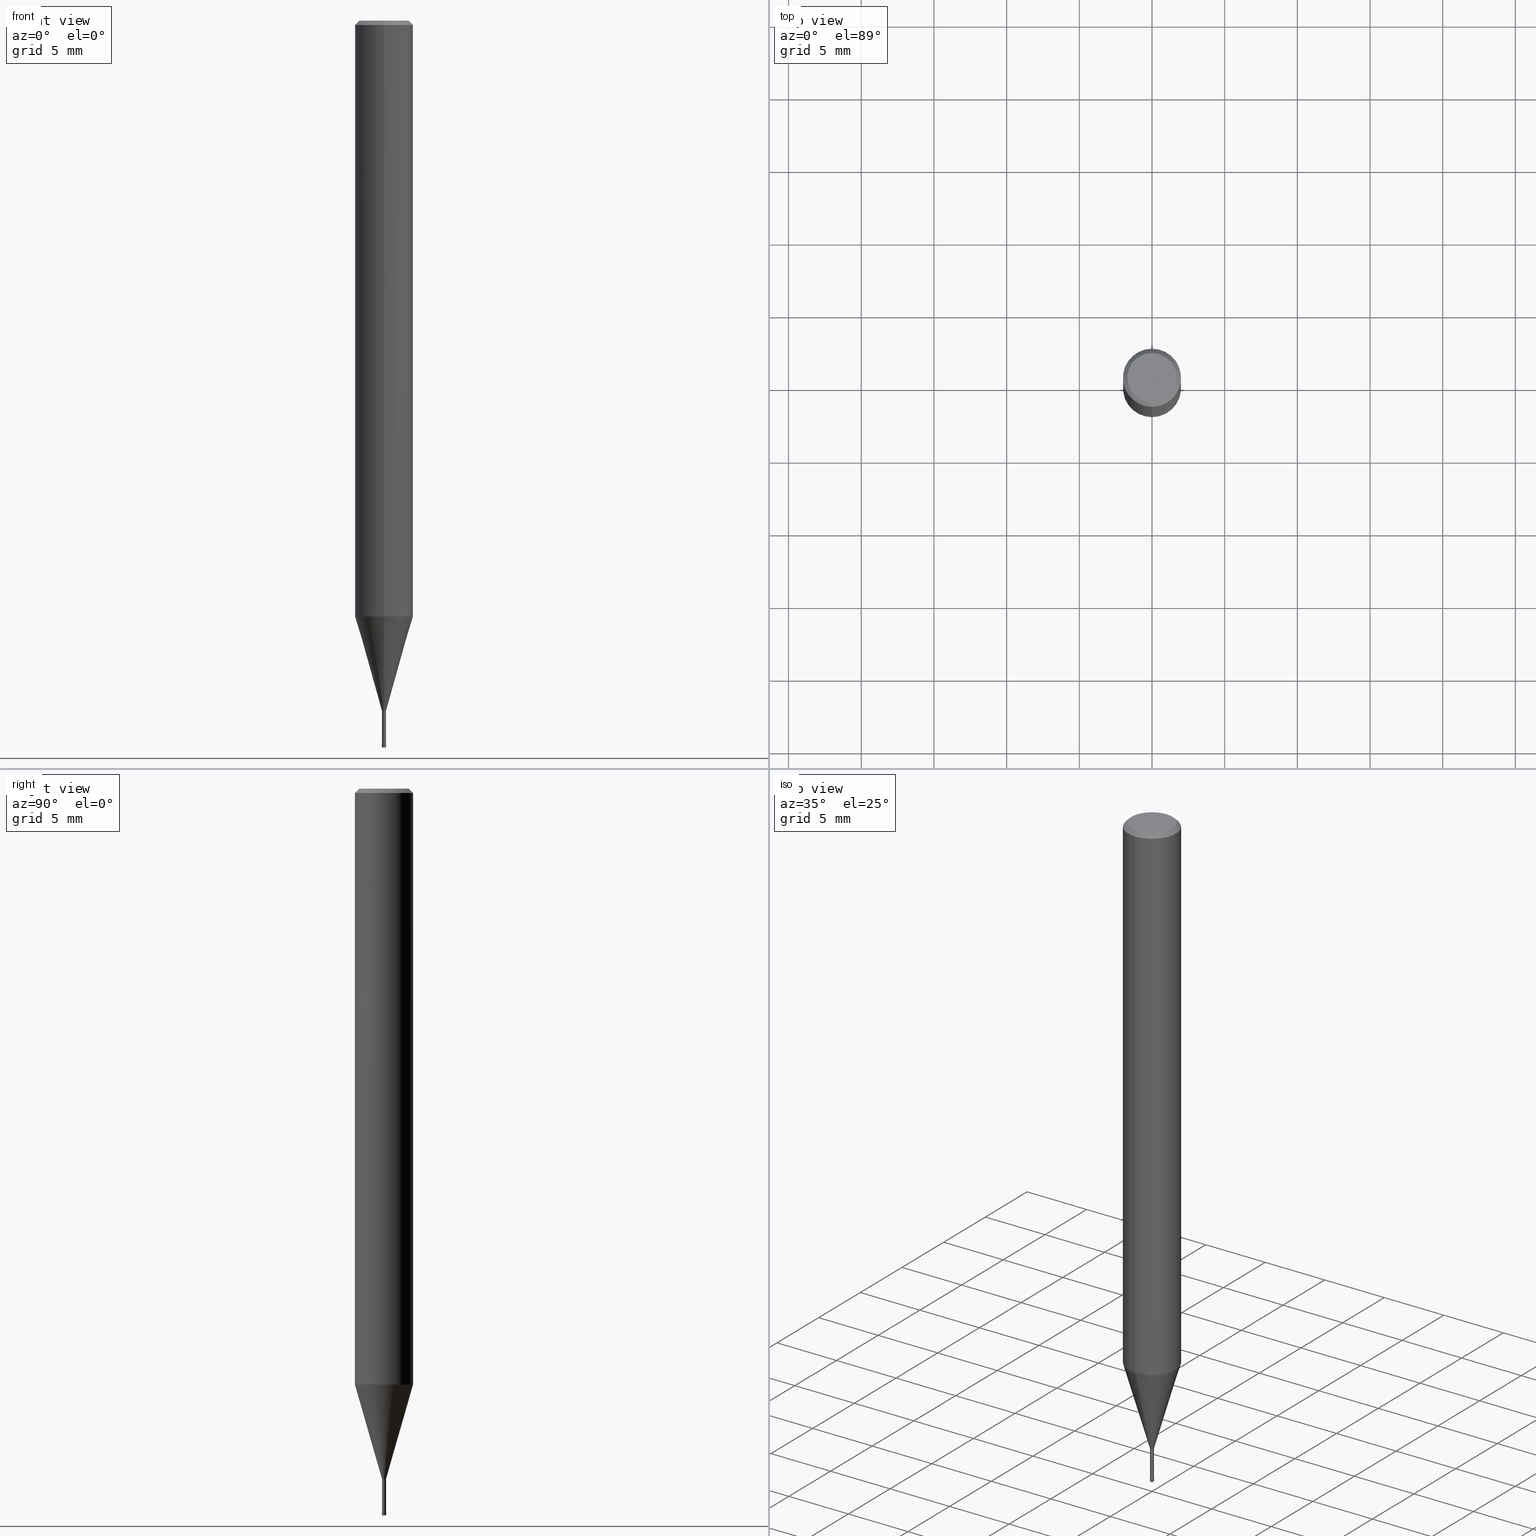
[diagram: canonical four-view strip — front | top / right | iso, engineering-drawing reading convention]
A machine part, canonical four-view strip (front | top / right | iso — engineering-drawing reading convention). The complete STEP part file that produces these views, byte-faithful:
ISO-10303-21;
HEADER;
FILE_DESCRIPTION(('no description'),'unknown implementation level');
FILE_NAME('HLRS2003-005-025E-Huellk.stp','  ',('CIMSOURCE GmbH'),('CADClick - KiM GmbH - www.kimweb.de'),'unknown preprocess','ACIS','unknown authorization');
FILE_SCHEMA(('automotive_design'));
ENDSEC;
DATA;
#1=MECHANICAL_DESIGN_GEOMETRIC_PRESENTATION_REPRESENTATION(' ',(#14,#15,#16,#17,#18,#19,#20,#21,#22,#23,#24,#25,#26,#27,#28,#29,#30,#31,#32,#33,#34,#35,#36,#37,#38,#39,#40,#41,#42,#43,#44,#45,#46,#47,#48,#49,#50,#51,#52,#53,#54,#55,#56,#57,#58,#59,#60,#61,#62,#63,#64,#65,#66,#67,#68,#69,#70,#71,#72,#73,#74,#75,#76,#77,#78,#79,#80),#10);
#2=PRODUCT_DEFINITION_CONTEXT('',#81,'design');
#3=APPLICATION_PROTOCOL_DEFINITION('INTERNATIONAL STANDARD','automotive_design',1994,#81);
#4=PRODUCT_CATEGORY_RELATIONSHIP('NONE','NONE',#82,#83);
#5=SHAPE_DEFINITION_REPRESENTATION(#84,#85);
#6=PRODUCT_DEFINITION_CONTEXT('',#86,'design');
#7=APPLICATION_PROTOCOL_DEFINITION('INTERNATIONAL STANDARD','automotive_design',1994,#86);
#8=PRODUCT_CATEGORY_RELATIONSHIP('NONE','NONE',#87,#88);
#9=SHAPE_DEFINITION_REPRESENTATION(#89,#90);
#10= (GEOMETRIC_REPRESENTATION_CONTEXT(3)GLOBAL_UNCERTAINTY_ASSIGNED_CONTEXT((#93))GLOBAL_UNIT_ASSIGNED_CONTEXT((#95,#96,#97))REPRESENTATION_CONTEXT('NONE','WORKSPACE'));
#14=STYLED_ITEM('',(#99),#100);
#15=STYLED_ITEM('',(#101),#102);
#16=STYLED_ITEM('',(#103),#104);
#17=STYLED_ITEM('',(#105),#106);
#18=STYLED_ITEM('',(#107),#108);
#19=STYLED_ITEM('',(#109),#110);
#20=STYLED_ITEM('',(#111),#112);
#21=STYLED_ITEM('',(#113),#114);
#22=STYLED_ITEM('',(#115),#116);
#23=STYLED_ITEM('',(#117),#118);
#24=STYLED_ITEM('',(#119),#120);
#25=STYLED_ITEM('',(#121),#122);
#26=STYLED_ITEM('',(#123),#124);
#27=STYLED_ITEM('',(#125),#126);
#28=STYLED_ITEM('',(#127),#128);
#29=STYLED_ITEM('',(#129),#130);
#30=STYLED_ITEM('',(#131),#132);
#31=STYLED_ITEM('',(#133),#134);
#32=STYLED_ITEM('',(#135),#136);
#33=STYLED_ITEM('',(#137),#138);
#34=STYLED_ITEM('',(#139),#140);
#35=STYLED_ITEM('',(#141),#142);
#36=STYLED_ITEM('',(#143),#144);
#37=STYLED_ITEM('',(#145),#146);
#38=STYLED_ITEM('',(#147),#148);
#39=STYLED_ITEM('',(#149),#150);
#40=STYLED_ITEM('',(#151),#152);
#41=STYLED_ITEM('',(#153),#154);
#42=STYLED_ITEM('',(#155),#156);
#43=STYLED_ITEM('',(#157),#158);
#44=STYLED_ITEM('',(#159),#160);
#45=STYLED_ITEM('',(#161),#162);
#46=STYLED_ITEM('',(#163),#164);
#47=STYLED_ITEM('',(#165),#166);
#48=STYLED_ITEM('',(#167),#168);
#49=STYLED_ITEM('',(#169),#170);
#50=STYLED_ITEM('',(#171),#172);
#51=STYLED_ITEM('',(#173),#174);
#52=STYLED_ITEM('',(#175),#176);
#53=STYLED_ITEM('',(#177),#178);
#54=STYLED_ITEM('',(#179),#180);
#55=STYLED_ITEM('',(#181),#182);
#56=STYLED_ITEM('',(#183),#184);
#57=STYLED_ITEM('',(#185),#186);
#58=STYLED_ITEM('',(#187),#188);
#59=STYLED_ITEM('',(#189),#190);
#60=STYLED_ITEM('',(#191),#192);
#61=STYLED_ITEM('',(#193),#194);
#62=STYLED_ITEM('',(#195),#196);
#63=STYLED_ITEM('',(#197),#198);
#64=STYLED_ITEM('',(#199),#200);
#65=STYLED_ITEM('',(#201),#202);
#66=STYLED_ITEM('',(#203),#204);
#67=STYLED_ITEM('',(#205),#206);
#68=STYLED_ITEM('',(#207),#208);
#69=STYLED_ITEM('',(#209),#210);
#70=STYLED_ITEM('',(#211),#212);
#71=STYLED_ITEM('',(#213),#214);
#72=STYLED_ITEM('',(#215),#216);
#73=STYLED_ITEM('',(#217),#218);
#74=STYLED_ITEM('',(#219),#220);
#75=STYLED_ITEM('',(#221),#222);
#76=STYLED_ITEM('',(#223),#224);
#77=STYLED_ITEM('',(#225),#226);
#78=STYLED_ITEM('',(#227),#228);
#79=STYLED_ITEM('',(#229),#230);
#80=STYLED_ITEM('',(#231),#232);
#81=APPLICATION_CONTEXT(' ');
#82=PRODUCT_CATEGORY('part','NONE');
#83=PRODUCT_RELATED_PRODUCT_CATEGORY('detail',' ',(#233));
#84=PRODUCT_DEFINITION_SHAPE('NONE','NONE',#234);
#85=ADVANCED_BREP_SHAPE_REPRESENTATION('1',(#114,#235),#10);
#86=APPLICATION_CONTEXT(' ');
#87=PRODUCT_CATEGORY('part','NONE');
#88=PRODUCT_RELATED_PRODUCT_CATEGORY('detail',' ',(#236));
#89=PRODUCT_DEFINITION_SHAPE('NONE','NONE',#237);
#90=ADVANCED_BREP_SHAPE_REPRESENTATION('2',(#158,#238),#10);
#93=UNCERTAINTY_MEASURE_WITH_UNIT(LENGTH_MEASURE(1.0E-006),#95,'','');
#95= (CONVERSION_BASED_UNIT('MILLIMETRE',#241)LENGTH_UNIT()NAMED_UNIT(#244));
#96= (NAMED_UNIT(#246)PLANE_ANGLE_UNIT()SI_UNIT($,.RADIAN.));
#97= (NAMED_UNIT(#246)SOLID_ANGLE_UNIT()SI_UNIT($,.STERADIAN.));
#99=PRESENTATION_STYLE_ASSIGNMENT((#252));
#100=ADVANCED_FACE('',(#253),#254,.T.);
#101=PRESENTATION_STYLE_ASSIGNMENT((#255));
#102=VERTEX_POINT('',#256);
#103=PRESENTATION_STYLE_ASSIGNMENT((#257));
#104=ADVANCED_FACE('',(#258),#259,.T.);
#105=PRESENTATION_STYLE_ASSIGNMENT((#260));
#106=EDGE_CURVE('',#140,#198,#261,.T.);
#107=PRESENTATION_STYLE_ASSIGNMENT((#262));
#108=ADVANCED_FACE('',(#263),#264,.T.);
#109=PRESENTATION_STYLE_ASSIGNMENT((#265));
#110=EDGE_CURVE('',#140,#210,#266,.T.);
#111=PRESENTATION_STYLE_ASSIGNMENT((#267));
#112=VERTEX_POINT('',#268);
#113=PRESENTATION_STYLE_ASSIGNMENT((#269));
#114=MANIFOLD_SOLID_BREP('1',#270);
#115=PRESENTATION_STYLE_ASSIGNMENT((#271));
#116=EDGE_CURVE('',#138,#182,#272,.T.);
#117=PRESENTATION_STYLE_ASSIGNMENT((#273));
#118=VERTEX_POINT('',#274);
#119=PRESENTATION_STYLE_ASSIGNMENT((#275));
#120=ADVANCED_FACE('',(#276),#277,.T.);
#121=PRESENTATION_STYLE_ASSIGNMENT((#278));
#122=EDGE_CURVE('',#198,#140,#279,.T.);
#123=PRESENTATION_STYLE_ASSIGNMENT((#280));
#124=EDGE_CURVE('',#210,#190,#281,.T.);
#125=PRESENTATION_STYLE_ASSIGNMENT((#282));
#126=EDGE_CURVE('',#190,#178,#283,.T.);
#127=PRESENTATION_STYLE_ASSIGNMENT((#284));
#128=ADVANCED_FACE('',(#285),#286,.T.);
#129=PRESENTATION_STYLE_ASSIGNMENT((#287));
#130=EDGE_CURVE('',#182,#138,#288,.T.);
#131=PRESENTATION_STYLE_ASSIGNMENT((#289));
#132=VERTEX_POINT('',#290);
#133=PRESENTATION_STYLE_ASSIGNMENT((#291));
#134=EDGE_CURVE('',#202,#132,#292,.T.);
#135=PRESENTATION_STYLE_ASSIGNMENT((#293));
#136=EDGE_CURVE('',#102,#210,#294,.T.);
#137=PRESENTATION_STYLE_ASSIGNMENT((#295));
#138=VERTEX_POINT('',#296);
#139=PRESENTATION_STYLE_ASSIGNMENT((#297));
#140=VERTEX_POINT('',#298);
#141=PRESENTATION_STYLE_ASSIGNMENT((#299));
#142=VERTEX_POINT('',#300);
#143=PRESENTATION_STYLE_ASSIGNMENT((#301));
#144=EDGE_CURVE('',#142,#162,#302,.T.);
#145=PRESENTATION_STYLE_ASSIGNMENT((#303));
#146=ADVANCED_FACE('',(#304),#305,.T.);
#147=PRESENTATION_STYLE_ASSIGNMENT((#306));
#148=EDGE_CURVE('',#210,#102,#307,.T.);
#149=PRESENTATION_STYLE_ASSIGNMENT((#308));
#150=ADVANCED_FACE('',(#309),#310,.T.);
#151=PRESENTATION_STYLE_ASSIGNMENT((#311));
#152=ADVANCED_FACE('',(#312),#313,.T.);
#153=PRESENTATION_STYLE_ASSIGNMENT((#314));
#154=EDGE_CURVE('',#112,#132,#315,.T.);
#155=PRESENTATION_STYLE_ASSIGNMENT((#316));
#156=EDGE_CURVE('',#112,#224,#317,.T.);
#157=PRESENTATION_STYLE_ASSIGNMENT((#318));
#158=MANIFOLD_SOLID_BREP('2',#319);
#159=PRESENTATION_STYLE_ASSIGNMENT((#320));
#160=VERTEX_POINT('',#321);
#161=PRESENTATION_STYLE_ASSIGNMENT((#322));
#162=VERTEX_POINT('',#323);
#163=PRESENTATION_STYLE_ASSIGNMENT((#324));
#164=ADVANCED_FACE('',(#325),#326,.T.);
#165=PRESENTATION_STYLE_ASSIGNMENT((#327));
#166=EDGE_CURVE('',#118,#142,#328,.T.);
#167=PRESENTATION_STYLE_ASSIGNMENT((#329));
#168=ADVANCED_FACE('',(#330,#331),#332,.T.);
#169=PRESENTATION_STYLE_ASSIGNMENT((#333));
#170=ADVANCED_FACE('',(#334),#335,.T.);
#171=PRESENTATION_STYLE_ASSIGNMENT((#336));
#172=EDGE_CURVE('',#142,#118,#337,.T.);
#173=PRESENTATION_STYLE_ASSIGNMENT((#338));
#174=ADVANCED_FACE('',(#339),#340,.T.);
#175=PRESENTATION_STYLE_ASSIGNMENT((#341));
#176=EDGE_CURVE('',#112,#220,#342,.T.);
#177=PRESENTATION_STYLE_ASSIGNMENT((#343));
#178=VERTEX_POINT('',#344);
#179=PRESENTATION_STYLE_ASSIGNMENT((#345));
#180=EDGE_CURVE('',#138,#160,#346,.T.);
#181=PRESENTATION_STYLE_ASSIGNMENT((#347));
#182=VERTEX_POINT('',#348);
#183=PRESENTATION_STYLE_ASSIGNMENT((#349));
#184=ADVANCED_FACE('',(#350),#351,.T.);
#185=PRESENTATION_STYLE_ASSIGNMENT((#352));
#186=EDGE_CURVE('',#220,#194,#353,.T.);
#187=PRESENTATION_STYLE_ASSIGNMENT((#354));
#188=EDGE_CURVE('',#132,#112,#355,.T.);
#189=PRESENTATION_STYLE_ASSIGNMENT((#356));
#190=VERTEX_POINT('',#357);
#191=PRESENTATION_STYLE_ASSIGNMENT((#358));
#192=EDGE_CURVE('',#160,#162,#359,.T.);
#193=PRESENTATION_STYLE_ASSIGNMENT((#360));
#194=VERTEX_POINT('',#361);
#195=PRESENTATION_STYLE_ASSIGNMENT((#362));
#196=ADVANCED_FACE('',(#363),#364,.T.);
#197=PRESENTATION_STYLE_ASSIGNMENT((#365));
#198=VERTEX_POINT('',#366);
#199=PRESENTATION_STYLE_ASSIGNMENT((#367));
#200=EDGE_CURVE('',#178,#190,#368,.T.);
#201=PRESENTATION_STYLE_ASSIGNMENT((#369));
#202=VERTEX_POINT('',#370);
#203=PRESENTATION_STYLE_ASSIGNMENT((#371));
#204=EDGE_CURVE('',#202,#224,#372,.T.);
#205=PRESENTATION_STYLE_ASSIGNMENT((#373));
#206=EDGE_CURVE('',#102,#198,#374,.T.);
#207=PRESENTATION_STYLE_ASSIGNMENT((#375));
#208=EDGE_CURVE('',#224,#202,#376,.T.);
#209=PRESENTATION_STYLE_ASSIGNMENT((#377));
#210=VERTEX_POINT('',#378);
#211=PRESENTATION_STYLE_ASSIGNMENT((#379));
#212=EDGE_CURVE('',#160,#118,#380,.T.);
#213=PRESENTATION_STYLE_ASSIGNMENT((#381));
#214=ADVANCED_FACE('',(#382),#383,.T.);
#215=PRESENTATION_STYLE_ASSIGNMENT((#384));
#216=ADVANCED_FACE('',(#385),#386,.T.);
#217=PRESENTATION_STYLE_ASSIGNMENT((#387));
#218=EDGE_CURVE('',#162,#182,#388,.T.);
#219=PRESENTATION_STYLE_ASSIGNMENT((#389));
#220=VERTEX_POINT('',#390);
#221=PRESENTATION_STYLE_ASSIGNMENT((#391));
#222=EDGE_CURVE('',#194,#220,#392,.T.);
#223=PRESENTATION_STYLE_ASSIGNMENT((#393));
#224=VERTEX_POINT('',#394);
#225=PRESENTATION_STYLE_ASSIGNMENT((#395));
#226=EDGE_CURVE('',#162,#160,#396,.T.);
#227=PRESENTATION_STYLE_ASSIGNMENT((#397));
#228=ADVANCED_FACE('',(#398),#399,.T.);
#229=PRESENTATION_STYLE_ASSIGNMENT((#400));
#230=EDGE_CURVE('',#194,#132,#401,.T.);
#231=PRESENTATION_STYLE_ASSIGNMENT((#402));
#232=EDGE_CURVE('',#178,#102,#403,.T.);
#233=PRODUCT('1','1','PART-1-DESC',(#404));
#234=PRODUCT_DEFINITION('NONE','NONE',#405,#2);
#235=AXIS2_PLACEMENT_3D('',#406,#407,#408);
#236=PRODUCT('2','2','PART-2-DESC',(#409));
#237=PRODUCT_DEFINITION('NONE','NONE',#410,#6);
#238=AXIS2_PLACEMENT_3D('',#411,#412,#413);
#241=LENGTH_MEASURE_WITH_UNIT(LENGTH_MEASURE(1.0),#414);
#244=DIMENSIONAL_EXPONENTS(1.0,0.0,0.0,0.0,0.0,0.0,0.0);
#246=DIMENSIONAL_EXPONENTS(0.0,0.0,0.0,0.0,0.0,0.0,0.0);
#252=SURFACE_STYLE_USAGE(.BOTH.,#415);
#253=FACE_OUTER_BOUND('',#416,.T.);
#254=CYLINDRICAL_SURFACE('',#417,0.13495);
#255=POINT_STYLE(' ',#418,POSITIVE_LENGTH_MEASURE(1.0E-006),#419);
#256=CARTESIAN_POINT('',(2.44921270764475E-016,-2.0,-0.299999999999997));
#257=SURFACE_STYLE_USAGE(.BOTH.,#420);
#258=FACE_OUTER_BOUND('',#421,.T.);
#259=PLANE('',#422);
#260=CURVE_STYLE('',#423,POSITIVE_LENGTH_MEASURE(1.0E-006),#424);
#261=CIRCLE('',#425,1.7);
#262=SURFACE_STYLE_USAGE(.BOTH.,#426);
#263=FACE_OUTER_BOUND('',#427,.T.);
#264=CYLINDRICAL_SURFACE('',#428,0.13495);
#265=CURVE_STYLE('',#429,POSITIVE_LENGTH_MEASURE(1.0E-006),#430);
#266=LINE('',#431,#432);
#267=POINT_STYLE(' ',#433,POSITIVE_LENGTH_MEASURE(1.0E-006),#434);
#268=CARTESIAN_POINT('',(1.83690953073357E-017,-0.15,-49.95));
#269=SURFACE_STYLE_USAGE(.BOTH.,#435);
#270=CLOSED_SHELL('',(#100,#174,#216,#128,#168,#120,#164,#196,#146,#108,#184));
#271=CURVE_STYLE('',#436,POSITIVE_LENGTH_MEASURE(1.0E-006),#437);
#272=CIRCLE('',#438,1.99995);
#273=POINT_STYLE(' ',#439,POSITIVE_LENGTH_MEASURE(1.0E-006),#440);
#274=CARTESIAN_POINT('',(0.0,0.13495,-49.7));
#275=SURFACE_STYLE_USAGE(.BOTH.,#441);
#276=FACE_OUTER_BOUND('',#442,.T.);
#277=PLANE('',#443);
#278=CURVE_STYLE('',#444,POSITIVE_LENGTH_MEASURE(1.0E-006),#445);
#279=CIRCLE('',#446,1.7);
#280=CURVE_STYLE('',#447,POSITIVE_LENGTH_MEASURE(1.0E-006),#448);
#281=LINE('',#449,#450);
#282=CURVE_STYLE('',#451,POSITIVE_LENGTH_MEASURE(1.0E-006),#452);
#283=CIRCLE('',#453,2.0);
#284=SURFACE_STYLE_USAGE(.BOTH.,#454);
#285=FACE_OUTER_BOUND('',#455,.T.);
#286=CONICAL_SURFACE('',#456,1.85,0.785398163397453);
#287=CURVE_STYLE('',#457,POSITIVE_LENGTH_MEASURE(1.0E-006),#458);
#288=CIRCLE('',#459,1.99995);
#289=POINT_STYLE(' ',#460,POSITIVE_LENGTH_MEASURE(1.0E-006),#461);
#290=CARTESIAN_POINT('',(0.0,0.15,-49.95));
#291=CURVE_STYLE('',#462,POSITIVE_LENGTH_MEASURE(1.0E-006),#463);
#292=LINE('',#464,#465);
#293=CURVE_STYLE('',#466,POSITIVE_LENGTH_MEASURE(1.0E-006),#467);
#294=CIRCLE('',#468,2.0);
#295=POINT_STYLE(' ',#469,POSITIVE_LENGTH_MEASURE(1.0E-006),#470);
#296=CARTESIAN_POINT('',(0.0,1.99995,-40.996));
#297=POINT_STYLE(' ',#471,POSITIVE_LENGTH_MEASURE(1.0E-006),#472);
#298=CARTESIAN_POINT('',(0.0,1.7,0.0));
#299=POINT_STYLE(' ',#473,POSITIVE_LENGTH_MEASURE(1.0E-006),#474);
#300=CARTESIAN_POINT('',(1.6526062744833E-017,-0.13495,-49.7));
#301=CURVE_STYLE('',#475,POSITIVE_LENGTH_MEASURE(1.0E-006),#476);
#302=LINE('',#477,#478);
#303=SURFACE_STYLE_USAGE(.BOTH.,#479);
#304=FACE_OUTER_BOUND('',#480,.T.);
#305=CONICAL_SURFACE('',#481,1.06745,0.279253818445948);
#306=CURVE_STYLE('',#482,POSITIVE_LENGTH_MEASURE(1.0E-006),#483);
#307=CIRCLE('',#484,2.0);
#308=SURFACE_STYLE_USAGE(.BOTH.,#485);
#309=FACE_OUTER_BOUND('',#486,.T.);
#310=TOROIDAL_SURFACE('',#487,0.1,0.0499999999999998);
#311=SURFACE_STYLE_USAGE(.BOTH.,#488);
#312=FACE_OUTER_BOUND('',#489,.T.);
#313=CONICAL_SURFACE('',#490,0.14995,0.000399999978666625);
#314=CURVE_STYLE('',#491,POSITIVE_LENGTH_MEASURE(1.0E-006),#492);
#315=CIRCLE('',#493,0.15);
#316=CURVE_STYLE('',#494,POSITIVE_LENGTH_MEASURE(1.0E-006),#495);
#317=LINE('',#496,#497);
#318=SURFACE_STYLE_USAGE(.BOTH.,#498);
#319=CLOSED_SHELL('',(#228,#170,#214,#152,#150,#104));
#320=POINT_STYLE(' ',#499,POSITIVE_LENGTH_MEASURE(1.0E-006),#500);
#321=CARTESIAN_POINT('',(0.0,0.13495,-47.5));
#322=POINT_STYLE(' ',#501,POSITIVE_LENGTH_MEASURE(1.0E-006),#502);
#323=CARTESIAN_POINT('',(1.6526062744833E-017,-0.13495,-47.5));
#324=SURFACE_STYLE_USAGE(.BOTH.,#503);
#325=FACE_OUTER_BOUND('',#504,.T.);
#326=CONICAL_SURFACE('',#505,1.85,0.785398163397453);
#327=CURVE_STYLE('',#506,POSITIVE_LENGTH_MEASURE(1.0E-006),#507);
#328=CIRCLE('',#508,0.13495);
#329=SURFACE_STYLE_USAGE(.BOTH.,#509);
#330=FACE_OUTER_BOUND('',#510,.T.);
#331=FACE_BOUND('',#511,.T.);
#332=PLANE('',#512);
#333=SURFACE_STYLE_USAGE(.BOTH.,#513);
#334=FACE_OUTER_BOUND('',#514,.T.);
#335=CONICAL_SURFACE('',#515,0.14995,0.000399999978666625);
#336=CURVE_STYLE('',#516,POSITIVE_LENGTH_MEASURE(1.0E-006),#517);
#337=CIRCLE('',#518,0.13495);
#338=SURFACE_STYLE_USAGE(.BOTH.,#519);
#339=FACE_OUTER_BOUND('',#520,.T.);
#340=CONICAL_SURFACE('',#521,1.06745,0.279253818445948);
#341=CURVE_STYLE('',#522,POSITIVE_LENGTH_MEASURE(1.0E-006),#523);
#342=CIRCLE('',#524,0.0499999999999998);
#343=POINT_STYLE(' ',#525,POSITIVE_LENGTH_MEASURE(1.0E-006),#526);
#344=CARTESIAN_POINT('',(2.44921270764475E-016,-2.0,-40.996));
#345=CURVE_STYLE('',#527,POSITIVE_LENGTH_MEASURE(1.0E-006),#528);
#346=LINE('',#529,#530);
#347=POINT_STYLE(' ',#531,POSITIVE_LENGTH_MEASURE(1.0E-006),#532);
#348=CARTESIAN_POINT('',(2.44915147732706E-016,-1.99995,-40.996));
#349=SURFACE_STYLE_USAGE(.BOTH.,#533);
#350=FACE_OUTER_BOUND('',#534,.T.);
#351=PLANE('',#535);
#352=CURVE_STYLE('',#536,POSITIVE_LENGTH_MEASURE(1.0E-006),#537);
#353=CIRCLE('',#538,0.1);
#354=CURVE_STYLE('',#539,POSITIVE_LENGTH_MEASURE(1.0E-006),#540);
#355=CIRCLE('',#541,0.15);
#356=POINT_STYLE(' ',#542,POSITIVE_LENGTH_MEASURE(1.0E-006),#543);
#357=CARTESIAN_POINT('',(0.0,2.0,-40.996));
#358=CURVE_STYLE('',#544,POSITIVE_LENGTH_MEASURE(1.0E-006),#545);
#359=CIRCLE('',#546,0.13495);
#360=POINT_STYLE(' ',#547,POSITIVE_LENGTH_MEASURE(1.0E-006),#548);
#361=CARTESIAN_POINT('',(0.0,0.1,-50.0));
#362=SURFACE_STYLE_USAGE(.BOTH.,#549);
#363=FACE_OUTER_BOUND('',#550,.T.);
#364=CYLINDRICAL_SURFACE('',#551,2.0);
#365=POINT_STYLE(' ',#552,POSITIVE_LENGTH_MEASURE(1.0E-006),#553);
#366=CARTESIAN_POINT('',(2.08183080149804E-016,-1.7,0.0));
#367=CURVE_STYLE('',#554,POSITIVE_LENGTH_MEASURE(1.0E-006),#555);
#368=CIRCLE('',#556,2.0);
#369=POINT_STYLE(' ',#557,POSITIVE_LENGTH_MEASURE(1.0E-006),#558);
#370=CARTESIAN_POINT('',(0.0,0.1499,-49.7));
#371=CURVE_STYLE('',#559,POSITIVE_LENGTH_MEASURE(1.0E-006),#560);
#372=CIRCLE('',#561,0.1499);
#373=CURVE_STYLE('',#562,POSITIVE_LENGTH_MEASURE(1.0E-006),#563);
#374=LINE('',#564,#565);
#375=CURVE_STYLE('',#566,POSITIVE_LENGTH_MEASURE(1.0E-006),#567);
#376=CIRCLE('',#568,0.1499);
#377=POINT_STYLE(' ',#569,POSITIVE_LENGTH_MEASURE(1.0E-006),#570);
#378=CARTESIAN_POINT('',(0.0,2.0,-0.299999999999997));
#379=CURVE_STYLE('',#571,POSITIVE_LENGTH_MEASURE(1.0E-006),#572);
#380=LINE('',#573,#574);
#381=SURFACE_STYLE_USAGE(.BOTH.,#575);
#382=FACE_OUTER_BOUND('',#576,.T.);
#383=PLANE('',#577);
#384=SURFACE_STYLE_USAGE(.BOTH.,#578);
#385=FACE_OUTER_BOUND('',#579,.T.);
#386=CYLINDRICAL_SURFACE('',#580,2.0);
#387=CURVE_STYLE('',#581,POSITIVE_LENGTH_MEASURE(1.0E-006),#582);
#388=LINE('',#583,#584);
#389=POINT_STYLE(' ',#585,POSITIVE_LENGTH_MEASURE(1.0E-006),#586);
#390=CARTESIAN_POINT('',(1.22460635382238E-017,-0.1,-50.0));
#391=CURVE_STYLE('',#587,POSITIVE_LENGTH_MEASURE(1.0E-006),#588);
#392=CIRCLE('',#589,0.1);
#393=POINT_STYLE(' ',#590,POSITIVE_LENGTH_MEASURE(1.0E-006),#591);
#394=CARTESIAN_POINT('',(1.83568492437974E-017,-0.1499,-49.7));
#395=CURVE_STYLE('',#592,POSITIVE_LENGTH_MEASURE(1.0E-006),#593);
#396=CIRCLE('',#594,0.13495);
#397=SURFACE_STYLE_USAGE(.BOTH.,#595);
#398=FACE_OUTER_BOUND('',#596,.T.);
#399=TOROIDAL_SURFACE('',#597,0.1,0.0499999999999998);
#400=CURVE_STYLE('',#598,POSITIVE_LENGTH_MEASURE(1.0E-006),#599);
#401=CIRCLE('',#600,0.0499999999999998);
#402=CURVE_STYLE('',#601,POSITIVE_LENGTH_MEASURE(1.0E-006),#602);
#403=LINE('',#603,#604);
#404=PRODUCT_CONTEXT('',#81,'mechanical');
#405=PRODUCT_DEFINITION_FORMATION_WITH_SPECIFIED_SOURCE(' ','NONE',#233,.NOT_KNOWN.);
#406=CARTESIAN_POINT('',(0.0,0.0,0.0));
#407=DIRECTION('',(0.0,0.0,1.0));
#408=DIRECTION('',(1.0,0.0,0.0));
#409=PRODUCT_CONTEXT('',#86,'mechanical');
#410=PRODUCT_DEFINITION_FORMATION_WITH_SPECIFIED_SOURCE(' ','NONE',#236,.NOT_KNOWN.);
#411=CARTESIAN_POINT('',(0.0,0.0,0.0));
#412=DIRECTION('',(0.0,0.0,1.0));
#413=DIRECTION('',(1.0,0.0,0.0));
#414= (NAMED_UNIT(#244)LENGTH_UNIT()SI_UNIT(.MILLI.,.METRE.));
#415=SURFACE_SIDE_STYLE('',(#606));
#416=EDGE_LOOP('',(#607,#608,#609,#610));
#417=AXIS2_PLACEMENT_3D('',#611,#612,#613);
#418=PRE_DEFINED_MARKER('');
#419=COLOUR_RGB('',0.498039215803146,0.498039215803146,0.498039215803146);
#420=SURFACE_SIDE_STYLE('',(#614));
#421=EDGE_LOOP('',(#615,#616));
#422=AXIS2_PLACEMENT_3D('',#617,#618,#619);
#423=DRAUGHTING_PRE_DEFINED_CURVE_FONT('continuous');
#424=COLOUR_RGB('',0.498039215803146,0.498039215803146,0.498039215803146);
#425=AXIS2_PLACEMENT_3D('',#620,#621,#622);
#426=SURFACE_SIDE_STYLE('',(#623));
#427=EDGE_LOOP('',(#624,#625,#626,#627));
#428=AXIS2_PLACEMENT_3D('',#628,#629,#630);
#429=DRAUGHTING_PRE_DEFINED_CURVE_FONT('continuous');
#430=COLOUR_RGB('',0.498039215803146,0.498039215803146,0.498039215803146);
#431=CARTESIAN_POINT('',(-2.2655217545714E-016,1.85,-0.149999999999999));
#432=VECTOR('',#631,1.0);
#433=PRE_DEFINED_MARKER('');
#434=COLOUR_RGB('',0.800000011920929,0.800000011920929,0.800000011920929);
#435=SURFACE_SIDE_STYLE('',(#632));
#436=DRAUGHTING_PRE_DEFINED_CURVE_FONT('continuous');
#437=COLOUR_RGB('',0.498039215803146,0.498039215803146,0.498039215803146);
#438=AXIS2_PLACEMENT_3D('',#633,#634,#635);
#439=PRE_DEFINED_MARKER('');
#440=COLOUR_RGB('',0.498039215803146,0.498039215803146,0.498039215803146);
#441=SURFACE_SIDE_STYLE('',(#636));
#442=EDGE_LOOP('',(#637,#638));
#443=AXIS2_PLACEMENT_3D('',#639,#640,#641);
#444=DRAUGHTING_PRE_DEFINED_CURVE_FONT('continuous');
#445=COLOUR_RGB('',0.498039215803146,0.498039215803146,0.498039215803146);
#446=AXIS2_PLACEMENT_3D('',#642,#643,#644);
#447=DRAUGHTING_PRE_DEFINED_CURVE_FONT('continuous');
#448=COLOUR_RGB('',0.498039215803146,0.498039215803146,0.498039215803146);
#449=CARTESIAN_POINT('',(-2.44921270764475E-016,2.0,-20.648));
#450=VECTOR('',#645,1.0);
#451=DRAUGHTING_PRE_DEFINED_CURVE_FONT('continuous');
#452=COLOUR_RGB('',0.498039215803146,0.498039215803146,0.498039215803146);
#453=AXIS2_PLACEMENT_3D('',#646,#647,#648);
#454=SURFACE_SIDE_STYLE('',(#649));
#455=EDGE_LOOP('',(#650,#651,#652,#653));
#456=AXIS2_PLACEMENT_3D('',#654,#655,#656);
#457=DRAUGHTING_PRE_DEFINED_CURVE_FONT('continuous');
#458=COLOUR_RGB('',0.498039215803146,0.498039215803146,0.498039215803146);
#459=AXIS2_PLACEMENT_3D('',#657,#658,#659);
#460=PRE_DEFINED_MARKER('');
#461=COLOUR_RGB('',0.800000011920929,0.800000011920929,0.800000011920929);
#462=DRAUGHTING_PRE_DEFINED_CURVE_FONT('continuous');
#463=COLOUR_RGB('',0.800000011920929,0.800000011920929,0.800000011920929);
#464=CARTESIAN_POINT('',(-1.83629722755666E-017,0.14995,-49.825));
#465=VECTOR('',#660,1.0);
#466=DRAUGHTING_PRE_DEFINED_CURVE_FONT('continuous');
#467=COLOUR_RGB('',0.498039215803146,0.498039215803146,0.498039215803146);
#468=AXIS2_PLACEMENT_3D('',#661,#662,#663);
#469=PRE_DEFINED_MARKER('');
#470=COLOUR_RGB('',0.498039215803146,0.498039215803146,0.498039215803146);
#471=PRE_DEFINED_MARKER('');
#472=COLOUR_RGB('',0.498039215803146,0.498039215803146,0.498039215803146);
#473=PRE_DEFINED_MARKER('');
#474=COLOUR_RGB('',0.498039215803146,0.498039215803146,0.498039215803146);
#475=DRAUGHTING_PRE_DEFINED_CURVE_FONT('continuous');
#476=COLOUR_RGB('',0.498039215803146,0.498039215803146,0.498039215803146);
#477=CARTESIAN_POINT('',(1.6526062744833E-017,-0.13495,-48.6));
#478=VECTOR('',#664,1.0);
#479=SURFACE_SIDE_STYLE('',(#665));
#480=EDGE_LOOP('',(#666,#667,#668,#669));
#481=AXIS2_PLACEMENT_3D('',#670,#671,#672);
#482=DRAUGHTING_PRE_DEFINED_CURVE_FONT('continuous');
#483=COLOUR_RGB('',0.498039215803146,0.498039215803146,0.498039215803146);
#484=AXIS2_PLACEMENT_3D('',#673,#674,#675);
#485=SURFACE_SIDE_STYLE('',(#676));
#486=EDGE_LOOP('',(#677,#678,#679,#680));
#487=AXIS2_PLACEMENT_3D('',#681,#682,#683);
#488=SURFACE_SIDE_STYLE('',(#684));
#489=EDGE_LOOP('',(#685,#686,#687,#688));
#490=AXIS2_PLACEMENT_3D('',#689,#690,#691);
#491=DRAUGHTING_PRE_DEFINED_CURVE_FONT('continuous');
#492=COLOUR_RGB('',0.800000011920929,0.800000011920929,0.800000011920929);
#493=AXIS2_PLACEMENT_3D('',#692,#693,#694);
#494=DRAUGHTING_PRE_DEFINED_CURVE_FONT('continuous');
#495=COLOUR_RGB('',0.800000011920929,0.800000011920929,0.800000011920929);
#496=CARTESIAN_POINT('',(1.83629722755666E-017,-0.14995,-49.825));
#497=VECTOR('',#695,1.0);
#498=SURFACE_SIDE_STYLE('',(#696));
#499=PRE_DEFINED_MARKER('');
#500=COLOUR_RGB('',0.498039215803146,0.498039215803146,0.498039215803146);
#501=PRE_DEFINED_MARKER('');
#502=COLOUR_RGB('',0.498039215803146,0.498039215803146,0.498039215803146);
#503=SURFACE_SIDE_STYLE('',(#697));
#504=EDGE_LOOP('',(#698,#699,#700,#701));
#505=AXIS2_PLACEMENT_3D('',#702,#703,#704);
#506=DRAUGHTING_PRE_DEFINED_CURVE_FONT('continuous');
#507=COLOUR_RGB('',0.498039215803146,0.498039215803146,0.498039215803146);
#508=AXIS2_PLACEMENT_3D('',#705,#706,#707);
#509=SURFACE_SIDE_STYLE('',(#708));
#510=EDGE_LOOP('',(#709,#710));
#511=EDGE_LOOP('',(#711,#712));
#512=AXIS2_PLACEMENT_3D('',#713,#714,#715);
#513=SURFACE_SIDE_STYLE('',(#716));
#514=EDGE_LOOP('',(#717,#718,#719,#720));
#515=AXIS2_PLACEMENT_3D('',#721,#722,#723);
#516=DRAUGHTING_PRE_DEFINED_CURVE_FONT('continuous');
#517=COLOUR_RGB('',0.498039215803146,0.498039215803146,0.498039215803146);
#518=AXIS2_PLACEMENT_3D('',#724,#725,#726);
#519=SURFACE_SIDE_STYLE('',(#727));
#520=EDGE_LOOP('',(#728,#729,#730,#731));
#521=AXIS2_PLACEMENT_3D('',#732,#733,#734);
#522=DRAUGHTING_PRE_DEFINED_CURVE_FONT('continuous');
#523=COLOUR_RGB('',0.800000011920929,0.800000011920929,0.800000011920929);
#524=AXIS2_PLACEMENT_3D('',#735,#736,#737);
#525=PRE_DEFINED_MARKER('');
#526=COLOUR_RGB('',0.498039215803146,0.498039215803146,0.498039215803146);
#527=DRAUGHTING_PRE_DEFINED_CURVE_FONT('continuous');
#528=COLOUR_RGB('',0.498039215803146,0.498039215803146,0.498039215803146);
#529=CARTESIAN_POINT('',(-1.3072060523877E-016,1.06745,-44.248));
#530=VECTOR('',#738,1.0);
#531=PRE_DEFINED_MARKER('');
#532=COLOUR_RGB('',0.498039215803146,0.498039215803146,0.498039215803146);
#533=SURFACE_SIDE_STYLE('',(#739));
#534=EDGE_LOOP('',(#740,#741));
#535=AXIS2_PLACEMENT_3D('',#742,#743,#744);
#536=DRAUGHTING_PRE_DEFINED_CURVE_FONT('continuous');
#537=COLOUR_RGB('',0.800000011920929,0.800000011920929,0.800000011920929);
#538=AXIS2_PLACEMENT_3D('',#745,#746,#747);
#539=DRAUGHTING_PRE_DEFINED_CURVE_FONT('continuous');
#540=COLOUR_RGB('',0.800000011920929,0.800000011920929,0.800000011920929);
#541=AXIS2_PLACEMENT_3D('',#748,#749,#750);
#542=PRE_DEFINED_MARKER('');
#543=COLOUR_RGB('',0.498039215803146,0.498039215803146,0.498039215803146);
#544=DRAUGHTING_PRE_DEFINED_CURVE_FONT('continuous');
#545=COLOUR_RGB('',0.498039215803146,0.498039215803146,0.498039215803146);
#546=AXIS2_PLACEMENT_3D('',#751,#752,#753);
#547=PRE_DEFINED_MARKER('');
#548=COLOUR_RGB('',0.800000011920929,0.800000011920929,0.800000011920929);
#549=SURFACE_SIDE_STYLE('',(#754));
#550=EDGE_LOOP('',(#755,#756,#757,#758));
#551=AXIS2_PLACEMENT_3D('',#759,#760,#761);
#552=PRE_DEFINED_MARKER('');
#553=COLOUR_RGB('',0.498039215803146,0.498039215803146,0.498039215803146);
#554=DRAUGHTING_PRE_DEFINED_CURVE_FONT('continuous');
#555=COLOUR_RGB('',0.498039215803146,0.498039215803146,0.498039215803146);
#556=AXIS2_PLACEMENT_3D('',#762,#763,#764);
#557=PRE_DEFINED_MARKER('');
#558=COLOUR_RGB('',0.800000011920929,0.800000011920929,0.800000011920929);
#559=DRAUGHTING_PRE_DEFINED_CURVE_FONT('continuous');
#560=COLOUR_RGB('',0.800000011920929,0.800000011920929,0.800000011920929);
#561=AXIS2_PLACEMENT_3D('',#765,#766,#767);
#562=DRAUGHTING_PRE_DEFINED_CURVE_FONT('continuous');
#563=COLOUR_RGB('',0.498039215803146,0.498039215803146,0.498039215803146);
#564=CARTESIAN_POINT('',(2.2655217545714E-016,-1.85,-0.149999999999999));
#565=VECTOR('',#768,1.0);
#566=DRAUGHTING_PRE_DEFINED_CURVE_FONT('continuous');
#567=COLOUR_RGB('',0.800000011920929,0.800000011920929,0.800000011920929);
#568=AXIS2_PLACEMENT_3D('',#769,#770,#771);
#569=PRE_DEFINED_MARKER('');
#570=COLOUR_RGB('',0.498039215803146,0.498039215803146,0.498039215803146);
#571=DRAUGHTING_PRE_DEFINED_CURVE_FONT('continuous');
#572=COLOUR_RGB('',0.498039215803146,0.498039215803146,0.498039215803146);
#573=CARTESIAN_POINT('',(-1.6526062744833E-017,0.13495,-48.6));
#574=VECTOR('',#772,1.0);
#575=SURFACE_SIDE_STYLE('',(#773));
#576=EDGE_LOOP('',(#774,#775));
#577=AXIS2_PLACEMENT_3D('',#776,#777,#778);
#578=SURFACE_SIDE_STYLE('',(#779));
#579=EDGE_LOOP('',(#780,#781,#782,#783));
#580=AXIS2_PLACEMENT_3D('',#784,#785,#786);
#581=DRAUGHTING_PRE_DEFINED_CURVE_FONT('continuous');
#582=COLOUR_RGB('',0.498039215803146,0.498039215803146,0.498039215803146);
#583=CARTESIAN_POINT('',(1.3072060523877E-016,-1.06745,-44.248));
#584=VECTOR('',#787,1.0);
#585=PRE_DEFINED_MARKER('');
#586=COLOUR_RGB('',0.800000011920929,0.800000011920929,0.800000011920929);
#587=DRAUGHTING_PRE_DEFINED_CURVE_FONT('continuous');
#588=COLOUR_RGB('',0.800000011920929,0.800000011920929,0.800000011920929);
#589=AXIS2_PLACEMENT_3D('',#788,#789,#790);
#590=PRE_DEFINED_MARKER('');
#591=COLOUR_RGB('',0.800000011920929,0.800000011920929,0.800000011920929);
#592=DRAUGHTING_PRE_DEFINED_CURVE_FONT('continuous');
#593=COLOUR_RGB('',0.498039215803146,0.498039215803146,0.498039215803146);
#594=AXIS2_PLACEMENT_3D('',#791,#792,#793);
#595=SURFACE_SIDE_STYLE('',(#794));
#596=EDGE_LOOP('',(#795,#796,#797,#798));
#597=AXIS2_PLACEMENT_3D('',#799,#800,#801);
#598=DRAUGHTING_PRE_DEFINED_CURVE_FONT('continuous');
#599=COLOUR_RGB('',0.800000011920929,0.800000011920929,0.800000011920929);
#600=AXIS2_PLACEMENT_3D('',#802,#803,#804);
#601=DRAUGHTING_PRE_DEFINED_CURVE_FONT('continuous');
#602=COLOUR_RGB('',0.498039215803146,0.498039215803146,0.498039215803146);
#603=CARTESIAN_POINT('',(2.44921270764475E-016,-2.0,-20.648));
#604=VECTOR('',#805,1.0);
#606=SURFACE_STYLE_FILL_AREA(#806);
#607=ORIENTED_EDGE('',*,*,#212,.F.);
#608=ORIENTED_EDGE('',*,*,#192,.T.);
#609=ORIENTED_EDGE('',*,*,#144,.F.);
#610=ORIENTED_EDGE('',*,*,#166,.F.);
#611=CARTESIAN_POINT('',(0.0,0.0,-48.6));
#612=DIRECTION('',(-0.0,-0.0,1.0));
#613=DIRECTION('',(0.0,1.0,0.0));
#614=SURFACE_STYLE_FILL_AREA(#807);
#615=ORIENTED_EDGE('',*,*,#222,.T.);
#616=ORIENTED_EDGE('',*,*,#186,.T.);
#617=CARTESIAN_POINT('',(0.0,0.05,-50.0));
#618=DIRECTION('',(0.0,0.0,-1.0));
#619=DIRECTION('',(0.0,1.0,0.0));
#620=CARTESIAN_POINT('',(0.0,0.0,0.0));
#621=DIRECTION('',(0.0,0.0,-1.0));
#622=DIRECTION('',(0.0,1.0,0.0));
#623=SURFACE_STYLE_FILL_AREA(#808);
#624=ORIENTED_EDGE('',*,*,#212,.T.);
#625=ORIENTED_EDGE('',*,*,#172,.F.);
#626=ORIENTED_EDGE('',*,*,#144,.T.);
#627=ORIENTED_EDGE('',*,*,#226,.T.);
#628=CARTESIAN_POINT('',(0.0,0.0,-48.6));
#629=DIRECTION('',(-0.0,-0.0,1.0));
#630=DIRECTION('',(0.0,1.0,0.0));
#631=DIRECTION('',(-8.6592745707194E-017,0.707106781186551,-0.707106781186544));
#632=SURFACE_STYLE_FILL_AREA(#809);
#633=CARTESIAN_POINT('',(0.0,0.0,-40.996));
#634=DIRECTION('',(0.0,0.0,-1.0));
#635=DIRECTION('',(0.0,1.0,0.0));
#636=SURFACE_STYLE_FILL_AREA(#810);
#637=ORIENTED_EDGE('',*,*,#106,.F.);
#638=ORIENTED_EDGE('',*,*,#122,.F.);
#639=CARTESIAN_POINT('',(0.0,0.85,0.0));
#640=DIRECTION('',(-0.0,0.0,1.0));
#641=DIRECTION('',(0.0,-1.0,0.0));
#642=CARTESIAN_POINT('',(0.0,0.0,0.0));
#643=DIRECTION('',(0.0,0.0,-1.0));
#644=DIRECTION('',(0.0,1.0,0.0));
#645=DIRECTION('',(0.0,0.0,-1.0));
#646=CARTESIAN_POINT('',(0.0,0.0,-40.996));
#647=DIRECTION('',(0.0,0.0,-1.0));
#648=DIRECTION('',(0.0,1.0,0.0));
#649=SURFACE_STYLE_FILL_AREA(#811);
#650=ORIENTED_EDGE('',*,*,#110,.F.);
#651=ORIENTED_EDGE('',*,*,#106,.T.);
#652=ORIENTED_EDGE('',*,*,#206,.F.);
#653=ORIENTED_EDGE('',*,*,#148,.F.);
#654=CARTESIAN_POINT('',(0.0,0.0,-0.149999999999999));
#655=DIRECTION('',(0.0,-0.0,-1.0));
#656=DIRECTION('',(0.0,1.0,0.0));
#657=CARTESIAN_POINT('',(0.0,0.0,-40.996));
#658=DIRECTION('',(0.0,0.0,-1.0));
#659=DIRECTION('',(0.0,1.0,0.0));
#660=DIRECTION('',(-4.89842502341498E-020,0.00039999996799996,-0.99999992000001));
#661=CARTESIAN_POINT('',(0.0,0.0,-0.299999999999997));
#662=DIRECTION('',(0.0,0.0,-1.0));
#663=DIRECTION('',(0.0,1.0,0.0));
#664=DIRECTION('',(-0.0,-0.0,1.0));
#665=SURFACE_STYLE_FILL_AREA(#812);
#666=ORIENTED_EDGE('',*,*,#180,.T.);
#667=ORIENTED_EDGE('',*,*,#226,.F.);
#668=ORIENTED_EDGE('',*,*,#218,.T.);
#669=ORIENTED_EDGE('',*,*,#130,.T.);
#670=CARTESIAN_POINT('',(0.0,0.0,-44.248));
#671=DIRECTION('',(-0.0,-0.0,1.0));
#672=DIRECTION('',(0.0,1.0,0.0));
#673=CARTESIAN_POINT('',(0.0,0.0,-0.299999999999997));
#674=DIRECTION('',(0.0,0.0,-1.0));
#675=DIRECTION('',(0.0,1.0,0.0));
#676=SURFACE_STYLE_FILL_AREA(#813);
#677=ORIENTED_EDGE('',*,*,#176,.T.);
#678=ORIENTED_EDGE('',*,*,#222,.F.);
#679=ORIENTED_EDGE('',*,*,#230,.T.);
#680=ORIENTED_EDGE('',*,*,#188,.T.);
#681=CARTESIAN_POINT('',(0.0,0.0,-49.95));
#682=DIRECTION('',(0.0,0.0,-1.0));
#683=DIRECTION('',(0.0,-1.0,0.0));
#684=SURFACE_STYLE_FILL_AREA(#814);
#685=ORIENTED_EDGE('',*,*,#134,.T.);
#686=ORIENTED_EDGE('',*,*,#154,.F.);
#687=ORIENTED_EDGE('',*,*,#156,.T.);
#688=ORIENTED_EDGE('',*,*,#208,.T.);
#689=CARTESIAN_POINT('',(0.0,0.0,-49.825));
#690=DIRECTION('',(0.0,-0.0,-1.0));
#691=DIRECTION('',(0.0,1.0,0.0));
#692=CARTESIAN_POINT('',(0.0,0.0,-49.95));
#693=DIRECTION('',(0.0,0.0,-1.0));
#694=DIRECTION('',(0.0,1.0,0.0));
#695=DIRECTION('',(-4.89842502341498E-020,0.00039999996799996,0.99999992000001));
#696=SURFACE_STYLE_FILL_AREA(#815);
#697=SURFACE_STYLE_FILL_AREA(#816);
#698=ORIENTED_EDGE('',*,*,#110,.T.);
#699=ORIENTED_EDGE('',*,*,#136,.F.);
#700=ORIENTED_EDGE('',*,*,#206,.T.);
#701=ORIENTED_EDGE('',*,*,#122,.T.);
#702=CARTESIAN_POINT('',(0.0,0.0,-0.149999999999999));
#703=DIRECTION('',(0.0,-0.0,-1.0));
#704=DIRECTION('',(0.0,1.0,0.0));
#705=CARTESIAN_POINT('',(0.0,0.0,-49.7));
#706=DIRECTION('',(0.0,0.0,-1.0));
#707=DIRECTION('',(0.0,1.0,0.0));
#708=SURFACE_STYLE_FILL_AREA(#817);
#709=ORIENTED_EDGE('',*,*,#126,.T.);
#710=ORIENTED_EDGE('',*,*,#200,.T.);
#711=ORIENTED_EDGE('',*,*,#116,.F.);
#712=ORIENTED_EDGE('',*,*,#130,.F.);
#713=CARTESIAN_POINT('',(0.0,1.0,-40.996));
#714=DIRECTION('',(0.0,0.0,-1.0));
#715=DIRECTION('',(0.0,1.0,0.0));
#716=SURFACE_STYLE_FILL_AREA(#818);
#717=ORIENTED_EDGE('',*,*,#134,.F.);
#718=ORIENTED_EDGE('',*,*,#204,.T.);
#719=ORIENTED_EDGE('',*,*,#156,.F.);
#720=ORIENTED_EDGE('',*,*,#188,.F.);
#721=CARTESIAN_POINT('',(0.0,0.0,-49.825));
#722=DIRECTION('',(0.0,-0.0,-1.0));
#723=DIRECTION('',(0.0,1.0,0.0));
#724=CARTESIAN_POINT('',(0.0,0.0,-49.7));
#725=DIRECTION('',(0.0,0.0,-1.0));
#726=DIRECTION('',(0.0,1.0,0.0));
#727=SURFACE_STYLE_FILL_AREA(#819);
#728=ORIENTED_EDGE('',*,*,#180,.F.);
#729=ORIENTED_EDGE('',*,*,#116,.T.);
#730=ORIENTED_EDGE('',*,*,#218,.F.);
#731=ORIENTED_EDGE('',*,*,#192,.F.);
#732=CARTESIAN_POINT('',(0.0,0.0,-44.248));
#733=DIRECTION('',(-0.0,-0.0,1.0));
#734=DIRECTION('',(0.0,1.0,0.0));
#735=CARTESIAN_POINT('',(1.22460635382238E-017,-0.1,-49.95));
#736=DIRECTION('',(1.0,1.22460635382238E-016,0.0));
#737=DIRECTION('',(1.22460635382238E-016,-1.0,-0.0));
#738=DIRECTION('',(3.3754859704966E-017,-0.275638449854572,-0.961261382227419));
#739=SURFACE_STYLE_FILL_AREA(#820);
#740=ORIENTED_EDGE('',*,*,#166,.T.);
#741=ORIENTED_EDGE('',*,*,#172,.T.);
#742=CARTESIAN_POINT('',(0.0,0.067475,-49.7));
#743=DIRECTION('',(0.0,0.0,-1.0));
#744=DIRECTION('',(0.0,1.0,0.0));
#745=CARTESIAN_POINT('',(0.0,0.0,-50.0));
#746=DIRECTION('',(0.0,0.0,-1.0));
#747=DIRECTION('',(0.0,1.0,0.0));
#748=CARTESIAN_POINT('',(0.0,0.0,-49.95));
#749=DIRECTION('',(0.0,0.0,-1.0));
#750=DIRECTION('',(0.0,1.0,0.0));
#751=CARTESIAN_POINT('',(0.0,0.0,-47.5));
#752=DIRECTION('',(0.0,0.0,-1.0));
#753=DIRECTION('',(0.0,1.0,0.0));
#754=SURFACE_STYLE_FILL_AREA(#821);
#755=ORIENTED_EDGE('',*,*,#124,.T.);
#756=ORIENTED_EDGE('',*,*,#200,.F.);
#757=ORIENTED_EDGE('',*,*,#232,.T.);
#758=ORIENTED_EDGE('',*,*,#136,.T.);
#759=CARTESIAN_POINT('',(0.0,0.0,-20.648));
#760=DIRECTION('',(-0.0,-0.0,1.0));
#761=DIRECTION('',(0.0,1.0,0.0));
#762=CARTESIAN_POINT('',(0.0,0.0,-40.996));
#763=DIRECTION('',(0.0,0.0,-1.0));
#764=DIRECTION('',(0.0,1.0,0.0));
#765=CARTESIAN_POINT('',(0.0,0.0,-49.7));
#766=DIRECTION('',(0.0,0.0,-1.0));
#767=DIRECTION('',(0.0,1.0,0.0));
#768=DIRECTION('',(-8.6592745707194E-017,0.707106781186551,0.707106781186544));
#769=CARTESIAN_POINT('',(0.0,0.0,-49.7));
#770=DIRECTION('',(0.0,0.0,-1.0));
#771=DIRECTION('',(0.0,1.0,0.0));
#772=DIRECTION('',(0.0,0.0,-1.0));
#773=SURFACE_STYLE_FILL_AREA(#822);
#774=ORIENTED_EDGE('',*,*,#204,.F.);
#775=ORIENTED_EDGE('',*,*,#208,.F.);
#776=CARTESIAN_POINT('',(0.0,0.07495,-49.7));
#777=DIRECTION('',(-0.0,0.0,1.0));
#778=DIRECTION('',(0.0,-1.0,0.0));
#779=SURFACE_STYLE_FILL_AREA(#823);
#780=ORIENTED_EDGE('',*,*,#124,.F.);
#781=ORIENTED_EDGE('',*,*,#148,.T.);
#782=ORIENTED_EDGE('',*,*,#232,.F.);
#783=ORIENTED_EDGE('',*,*,#126,.F.);
#784=CARTESIAN_POINT('',(0.0,0.0,-20.648));
#785=DIRECTION('',(-0.0,-0.0,1.0));
#786=DIRECTION('',(0.0,1.0,0.0));
#787=DIRECTION('',(3.3754859704966E-017,-0.275638449854572,0.961261382227419));
#788=CARTESIAN_POINT('',(0.0,0.0,-50.0));
#789=DIRECTION('',(0.0,0.0,-1.0));
#790=DIRECTION('',(0.0,1.0,0.0));
#791=CARTESIAN_POINT('',(0.0,0.0,-47.5));
#792=DIRECTION('',(0.0,0.0,-1.0));
#793=DIRECTION('',(0.0,1.0,0.0));
#794=SURFACE_STYLE_FILL_AREA(#824);
#795=ORIENTED_EDGE('',*,*,#176,.F.);
#796=ORIENTED_EDGE('',*,*,#154,.T.);
#797=ORIENTED_EDGE('',*,*,#230,.F.);
#798=ORIENTED_EDGE('',*,*,#186,.F.);
#799=CARTESIAN_POINT('',(0.0,0.0,-49.95));
#800=DIRECTION('',(0.0,0.0,-1.0));
#801=DIRECTION('',(0.0,-1.0,0.0));
#802=CARTESIAN_POINT('',(-1.22460635382238E-017,0.1,-49.95));
#803=DIRECTION('',(1.0,1.22460635382238E-016,0.0));
#804=DIRECTION('',(-1.22460635382238E-016,1.0,0.0));
#805=DIRECTION('',(-0.0,-0.0,1.0));
#806=FILL_AREA_STYLE('',(#825));
#807=FILL_AREA_STYLE('',(#826));
#808=FILL_AREA_STYLE('',(#827));
#809=FILL_AREA_STYLE('',(#828));
#810=FILL_AREA_STYLE('',(#829));
#811=FILL_AREA_STYLE('',(#830));
#812=FILL_AREA_STYLE('',(#831));
#813=FILL_AREA_STYLE('',(#832));
#814=FILL_AREA_STYLE('',(#833));
#815=FILL_AREA_STYLE('',(#834));
#816=FILL_AREA_STYLE('',(#835));
#817=FILL_AREA_STYLE('',(#836));
#818=FILL_AREA_STYLE('',(#837));
#819=FILL_AREA_STYLE('',(#838));
#820=FILL_AREA_STYLE('',(#839));
#821=FILL_AREA_STYLE('',(#840));
#822=FILL_AREA_STYLE('',(#841));
#823=FILL_AREA_STYLE('',(#842));
#824=FILL_AREA_STYLE('',(#843));
#825=FILL_AREA_STYLE_COLOUR('',#844);
#826=FILL_AREA_STYLE_COLOUR('',#845);
#827=FILL_AREA_STYLE_COLOUR('',#846);
#828=FILL_AREA_STYLE_COLOUR('',#847);
#829=FILL_AREA_STYLE_COLOUR('',#848);
#830=FILL_AREA_STYLE_COLOUR('',#849);
#831=FILL_AREA_STYLE_COLOUR('',#850);
#832=FILL_AREA_STYLE_COLOUR('',#851);
#833=FILL_AREA_STYLE_COLOUR('',#852);
#834=FILL_AREA_STYLE_COLOUR('',#853);
#835=FILL_AREA_STYLE_COLOUR('',#854);
#836=FILL_AREA_STYLE_COLOUR('',#855);
#837=FILL_AREA_STYLE_COLOUR('',#856);
#838=FILL_AREA_STYLE_COLOUR('',#857);
#839=FILL_AREA_STYLE_COLOUR('',#858);
#840=FILL_AREA_STYLE_COLOUR('',#859);
#841=FILL_AREA_STYLE_COLOUR('',#860);
#842=FILL_AREA_STYLE_COLOUR('',#861);
#843=FILL_AREA_STYLE_COLOUR('',#862);
#844=COLOUR_RGB('',0.498039215803146,0.498039215803146,0.498039215803146);
#845=COLOUR_RGB('',0.800000011920929,0.800000011920929,0.800000011920929);
#846=COLOUR_RGB('',0.498039215803146,0.498039215803146,0.498039215803146);
#847=COLOUR_RGB('',0.498039215803146,0.498039215803146,0.498039215803146);
#848=COLOUR_RGB('',0.498039215803146,0.498039215803146,0.498039215803146);
#849=COLOUR_RGB('',0.498039215803146,0.498039215803146,0.498039215803146);
#850=COLOUR_RGB('',0.498039215803146,0.498039215803146,0.498039215803146);
#851=COLOUR_RGB('',0.800000011920929,0.800000011920929,0.800000011920929);
#852=COLOUR_RGB('',0.800000011920929,0.800000011920929,0.800000011920929);
#853=COLOUR_RGB('',0.800000011920929,0.800000011920929,0.800000011920929);
#854=COLOUR_RGB('',0.498039215803146,0.498039215803146,0.498039215803146);
#855=COLOUR_RGB('',0.498039215803146,0.498039215803146,0.498039215803146);
#856=COLOUR_RGB('',0.800000011920929,0.800000011920929,0.800000011920929);
#857=COLOUR_RGB('',0.498039215803146,0.498039215803146,0.498039215803146);
#858=COLOUR_RGB('',0.498039215803146,0.498039215803146,0.498039215803146);
#859=COLOUR_RGB('',0.498039215803146,0.498039215803146,0.498039215803146);
#860=COLOUR_RGB('',0.800000011920929,0.800000011920929,0.800000011920929);
#861=COLOUR_RGB('',0.498039215803146,0.498039215803146,0.498039215803146);
#862=COLOUR_RGB('',0.800000011920929,0.800000011920929,0.800000011920929);
#863=AXIS2_PLACEMENT_3D('PCS',#864,#865,#866);
#864=CARTESIAN_POINT('',(0.0,0.0,0.0));
#865=DIRECTION('',(0.0,0.0,1.0));
#866=DIRECTION('',(1.0,0.0,0.0));
#867=AXIS2_PLACEMENT_3D('CIP',#868,#869,#870);
#868=CARTESIAN_POINT('',(0.0,0.0,-50.0));
#869=DIRECTION('',(0.0,0.0,1.0));
#870=DIRECTION('',(1.0,0.0,0.0));
#871=AXIS2_PLACEMENT_3D('CRP',#872,#873,#874);
#872=CARTESIAN_POINT('',(-0.15,0.0,-50.0));
#873=DIRECTION('',(0.0,0.0,1.0));
#874=DIRECTION('',(1.0,0.0,0.0));
#875=AXIS2_PLACEMENT_3D('MCS',#876,#877,#878);
#876=CARTESIAN_POINT('',(0.0,0.0,-40.996));
#877=DIRECTION('',(0.0,0.0,1.0));
#878=DIRECTION('',(1.0,0.0,0.0));
#879=CONSTRUCTIVE_GEOMETRY_REPRESENTATION_RELATIONSHIP('coordinate systems',$,#85,#880);
#880=CONSTRUCTIVE_GEOMETRY_REPRESENTATION('coordinate systems',(#863,#867,#871,#875),#10);
ENDSEC;
END-ISO-10303-21;
